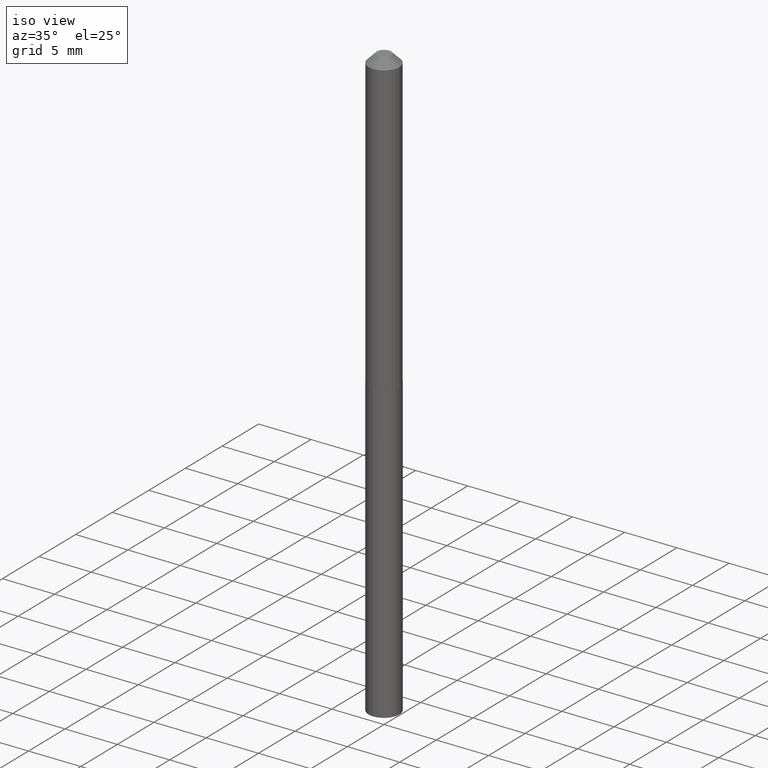
[diagram: clean part render]
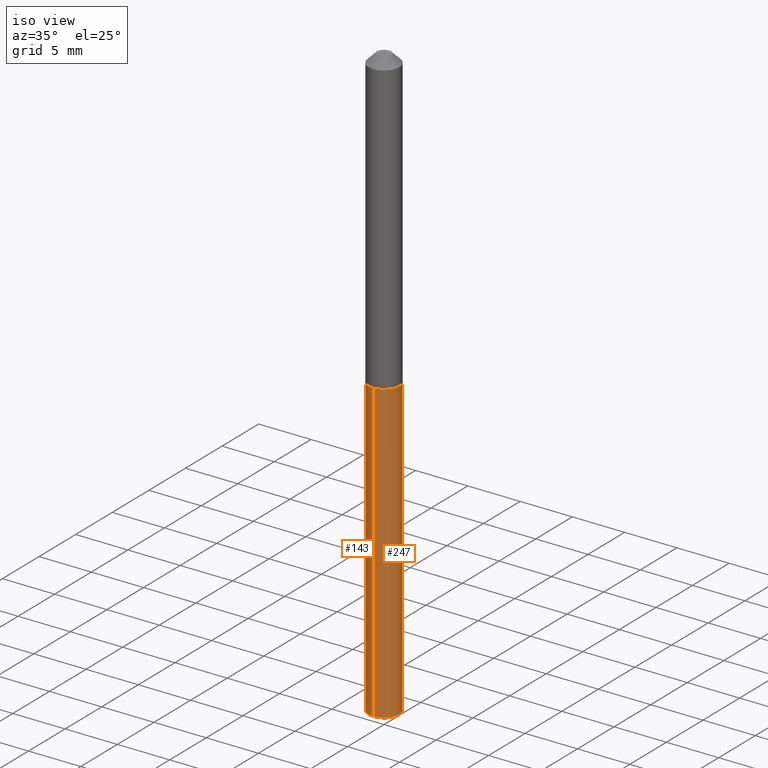
[diagram: same view with one multi-face feature highlighted, each face labeled with its STEP entity id]
A machine part, iso view. The highlighted faces form ONE feature: a constant-radius fillet chain: 2 tangent blend faces with common blend radius 1.4732 mm. The faces share edges in the B-rep.
Their STEP definitions:
[1] entity #247 (Cylinder):
#4 = VECTOR ( 'NONE', #122, 39.37007874015748143 ) ;
#37 = CARTESIAN_POINT ( 'NONE',  ( 4.121147867408853444E-16, 0.05799999999999611022, -1.116000000000000325 ) ) ;
#47 = CIRCLE ( 'NONE', #238, 0.05800000000000000294 ) ;
#56 = ORIENTED_EDGE ( 'NONE', *, *, #155, .T. ) ;
#65 = DIRECTION ( 'NONE',  ( -6.982962677686265922E-15, -1.000000000000000000, 2.355041373848502747E-15 ) ) ;
#83 = VECTOR ( 'NONE', #317, 39.37007874015748143 ) ;
#84 = ORIENTED_EDGE ( 'NONE', *, *, #236, .T. ) ;
#93 = CARTESIAN_POINT ( 'NONE',  ( -4.050118353057761076E-16, -0.05800000000000389566, -1.116000000000000103 ) ) ;
#107 = CARTESIAN_POINT ( 'NONE',  ( 5.464310694885686227E-29, -7.801555902971454094E-15, -2.234458946838995264 ) ) ;
#108 = ORIENTED_EDGE ( 'NONE', *, *, #323, .F. ) ;
#111 = CYLINDRICAL_SURFACE ( 'NONE', #248, 0.05800000000000000294 ) ;
#122 = DIRECTION ( 'NONE',  ( -2.445478678420199094E-29, 3.491467201240643148E-15, 1.000000000000000000 ) ) ;
#129 = CARTESIAN_POINT ( 'NONE',  ( -4.050118353057487440E-16, -0.05800000000000779532, -2.234458946838994819 ) ) ;
#131 = CIRCLE ( 'NONE', #185, 0.05800000000000000294 ) ;
#155 = EDGE_CURVE ( 'NONE', #178, #175, #306, .T. ) ;
#167 = DIRECTION ( 'NONE',  ( -2.445478678420199374E-29, 3.491467201240642753E-15, 1.000000000000000000 ) ) ;
#175 = VERTEX_POINT ( 'NONE', #368 ) ;
#178 = VERTEX_POINT ( 'NONE', #220 ) ;
#185 = AXIS2_PLACEMENT_3D ( 'NONE', #285, #167, #65 ) ;
#186 = ORIENTED_EDGE ( 'NONE', *, *, #207, .F. ) ;
#207 = EDGE_CURVE ( 'NONE', #296, #175, #131, .T. ) ;
#220 = CARTESIAN_POINT ( 'NONE',  ( 4.121147867409127080E-16, 0.05799999999999219669, -2.234458946838995708 ) ) ;
#236 = EDGE_CURVE ( 'NONE', #357, #178, #47, .T. ) ;
#238 = AXIS2_PLACEMENT_3D ( 'NONE', #107, #239, #304 ) ;
#239 = DIRECTION ( 'NONE',  ( -2.445478678420199374E-29, 3.491467201240642753E-15, 1.000000000000000000 ) ) ;
#247 = ADVANCED_FACE ( 'NONE', ( #274 ), #111, .T. ) ;
#248 = AXIS2_PLACEMENT_3D ( 'NONE', #331, #365, #350 ) ;
#250 = LINE ( 'NONE', #93, #83 ) ;
#274 = FACE_OUTER_BOUND ( 'NONE', #328, .T. ) ;
#285 = CARTESIAN_POINT ( 'NONE',  ( 2.729143187702612729E-29, -3.896493174148951371E-15, -1.116000000000000103 ) ) ;
#296 = VERTEX_POINT ( 'NONE', #341 ) ;
#304 = DIRECTION ( 'NONE',  ( -6.982962677686265922E-15, -1.000000000000000000, 4.710082747697005495E-15 ) ) ;
#306 = LINE ( 'NONE', #37, #4 ) ;
#317 = DIRECTION ( 'NONE',  ( -2.445478678420199094E-29, 3.491467201240643148E-15, 1.000000000000000000 ) ) ;
#323 = EDGE_CURVE ( 'NONE', #357, #296, #250, .T. ) ;
#328 = EDGE_LOOP ( 'NONE', ( #84, #56, #186, #108 ) ) ;
#331 = CARTESIAN_POINT ( 'NONE',  ( 2.729143187702612729E-29, -3.896493174148951371E-15, -1.116000000000000103 ) ) ;
#341 = CARTESIAN_POINT ( 'NONE',  ( -4.050118353057761076E-16, -0.05800000000000389566, -1.116000000000000103 ) ) ;
#350 = DIRECTION ( 'NONE',  ( -6.982962677686265922E-15, -1.000000000000000000, 2.355041373848502747E-15 ) ) ;
#357 = VERTEX_POINT ( 'NONE', #129 ) ;
#365 = DIRECTION ( 'NONE',  ( -2.445478678420199374E-29, 3.491467201240642753E-15, 1.000000000000000000 ) ) ;
#368 = CARTESIAN_POINT ( 'NONE',  ( 4.121147867409129052E-16, 0.05799999999999611022, -1.116000000000000325 ) ) ;
[2] entity #143 (Cylinder):
#4 = VECTOR ( 'NONE', #122, 39.37007874015748143 ) ;
#6 = DIRECTION ( 'NONE',  ( -2.445478678420199374E-29, 3.491467201240642753E-15, 1.000000000000000000 ) ) ;
#11 = CYLINDRICAL_SURFACE ( 'NONE', #81, 0.05800000000000000294 ) ;
#37 = CARTESIAN_POINT ( 'NONE',  ( 4.121147867408853444E-16, 0.05799999999999611022, -1.116000000000000325 ) ) ;
#54 = ORIENTED_EDGE ( 'NONE', *, *, #314, .T. ) ;
#58 = EDGE_LOOP ( 'NONE', ( #237, #54, #376, #303 ) ) ;
#81 = AXIS2_PLACEMENT_3D ( 'NONE', #117, #224, #335 ) ;
#83 = VECTOR ( 'NONE', #317, 39.37007874015748143 ) ;
#93 = CARTESIAN_POINT ( 'NONE',  ( -4.050118353057761076E-16, -0.05800000000000389566, -1.116000000000000103 ) ) ;
#117 = CARTESIAN_POINT ( 'NONE',  ( 2.729143187702612729E-29, -3.896493174148951371E-15, -1.116000000000000103 ) ) ;
#122 = DIRECTION ( 'NONE',  ( -2.445478678420199094E-29, 3.491467201240643148E-15, 1.000000000000000000 ) ) ;
#129 = CARTESIAN_POINT ( 'NONE',  ( -4.050118353057487440E-16, -0.05800000000000779532, -2.234458946838994819 ) ) ;
#137 = CIRCLE ( 'NONE', #270, 0.05800000000000000294 ) ;
#140 = EDGE_CURVE ( 'NONE', #175, #296, #384, .T. ) ;
#143 = ADVANCED_FACE ( 'NONE', ( #173 ), #11, .T. ) ;
#155 = EDGE_CURVE ( 'NONE', #178, #175, #306, .T. ) ;
#173 = FACE_OUTER_BOUND ( 'NONE', #58, .T. ) ;
#175 = VERTEX_POINT ( 'NONE', #368 ) ;
#176 = AXIS2_PLACEMENT_3D ( 'NONE', #381, #378, #295 ) ;
#178 = VERTEX_POINT ( 'NONE', #220 ) ;
#220 = CARTESIAN_POINT ( 'NONE',  ( 4.121147867409127080E-16, 0.05799999999999219669, -2.234458946838995708 ) ) ;
#224 = DIRECTION ( 'NONE',  ( -2.445478678420199374E-29, 3.491467201240642753E-15, 1.000000000000000000 ) ) ;
#237 = ORIENTED_EDGE ( 'NONE', *, *, #155, .F. ) ;
#246 = CARTESIAN_POINT ( 'NONE',  ( 5.464310694885686227E-29, -7.801555902971454094E-15, -2.234458946838995264 ) ) ;
#250 = LINE ( 'NONE', #93, #83 ) ;
#270 = AXIS2_PLACEMENT_3D ( 'NONE', #246, #6, #305 ) ;
#295 = DIRECTION ( 'NONE',  ( -6.982962677686265922E-15, -1.000000000000000000, 2.355041373848502747E-15 ) ) ;
#296 = VERTEX_POINT ( 'NONE', #341 ) ;
#303 = ORIENTED_EDGE ( 'NONE', *, *, #140, .F. ) ;
#305 = DIRECTION ( 'NONE',  ( -6.982962677686265922E-15, -1.000000000000000000, 4.710082747697005495E-15 ) ) ;
#306 = LINE ( 'NONE', #37, #4 ) ;
#314 = EDGE_CURVE ( 'NONE', #178, #357, #137, .T. ) ;
#317 = DIRECTION ( 'NONE',  ( -2.445478678420199094E-29, 3.491467201240643148E-15, 1.000000000000000000 ) ) ;
#323 = EDGE_CURVE ( 'NONE', #357, #296, #250, .T. ) ;
#335 = DIRECTION ( 'NONE',  ( -6.982962677686265922E-15, -1.000000000000000000, 2.355041373848502747E-15 ) ) ;
#341 = CARTESIAN_POINT ( 'NONE',  ( -4.050118353057761076E-16, -0.05800000000000389566, -1.116000000000000103 ) ) ;
#357 = VERTEX_POINT ( 'NONE', #129 ) ;
#368 = CARTESIAN_POINT ( 'NONE',  ( 4.121147867409129052E-16, 0.05799999999999611022, -1.116000000000000325 ) ) ;
#376 = ORIENTED_EDGE ( 'NONE', *, *, #323, .T. ) ;
#378 = DIRECTION ( 'NONE',  ( -2.445478678420199374E-29, 3.491467201240642753E-15, 1.000000000000000000 ) ) ;
#381 = CARTESIAN_POINT ( 'NONE',  ( 2.729143187702612729E-29, -3.896493174148951371E-15, -1.116000000000000103 ) ) ;
#384 = CIRCLE ( 'NONE', #176, 0.05800000000000000294 ) ;